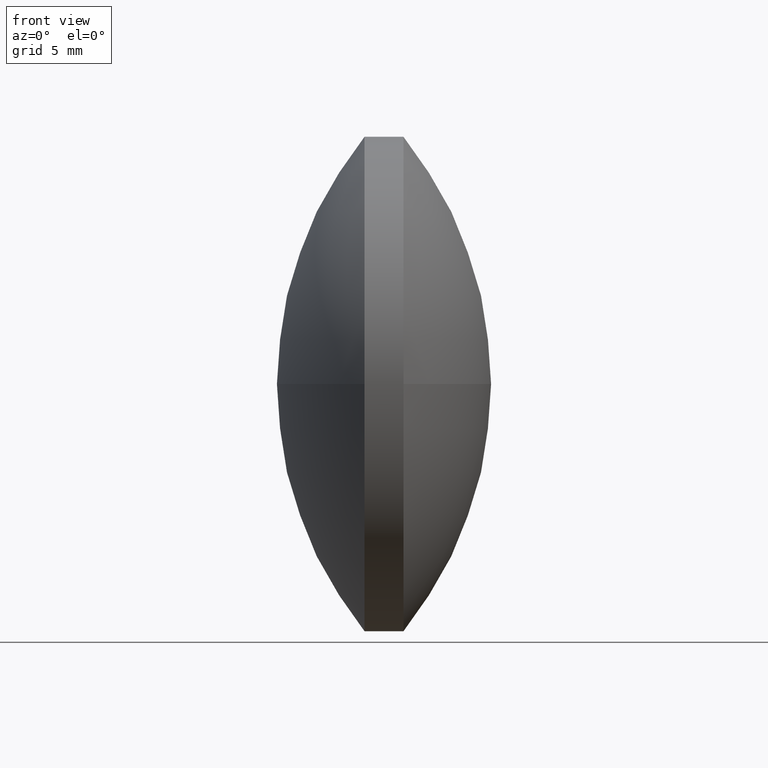
[diagram: clean part render]
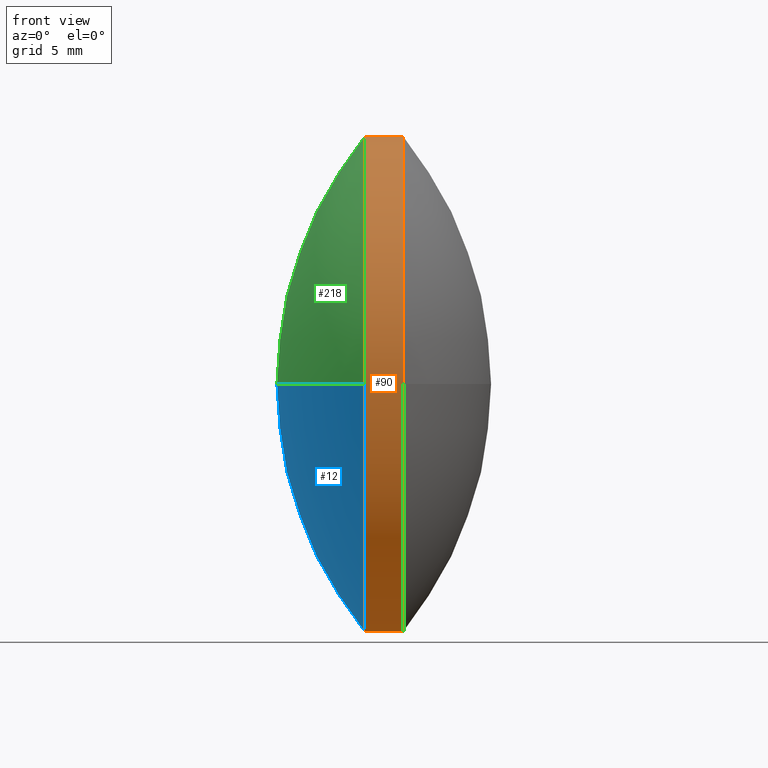
[diagram: same view with three faces highlighted in distinct colors, each labeled with its STEP entity id]
A machine part, front view with three faces highlighted in distinct colors.
Their STEP definitions:

[orange] entity #90 — the highlighted cylindrical surface (partial cylindrical patch) has radius 12.7 mm, axis along (-1, -0, -0).
#9 = CARTESIAN_POINT ( 'NONE',  ( 87.45786520323396500, 48.61611302318478100, 0.0000000000000000000 ) ) ;
#11 = DIRECTION ( 'NONE',  ( 0.0000000000000000000, 0.0000000000000000000, 1.000000000000000000 ) ) ;
#26 = DIRECTION ( 'NONE',  ( -1.000000000000000000, -0.0000000000000000000, -0.0000000000000000000 ) ) ;
#34 = VECTOR ( 'NONE', #333, 1000.000000000000000 ) ;
#39 = CIRCLE ( 'NONE', #170, 12.69999999999999600 ) ;
#40 = CARTESIAN_POINT ( 'NONE',  ( 85.45852234609111500, 48.61611302318478100, 0.0000000000000000000 ) ) ;
#47 = CIRCLE ( 'NONE', #201, 12.69999999999999600 ) ;
#52 = CARTESIAN_POINT ( 'NONE',  ( 85.45852234609111500, 48.61611302318478100, 0.0000000000000000000 ) ) ;
#64 = CARTESIAN_POINT ( 'NONE',  ( 79.30540135083715800, 48.61611302318478100, -12.69999999999999600 ) ) ;
#80 = EDGE_CURVE ( 'NONE', #232, #341, #178, .T. ) ;
#81 = CARTESIAN_POINT ( 'NONE',  ( 79.30540135083715800, 48.61611302318478100, 0.0000000000000000000 ) ) ;
#90 = ADVANCED_FACE ( 'NONE', ( #299 ), #243, .T. ) ;
#92 = VERTEX_POINT ( 'NONE', #180 ) ;
#113 = EDGE_CURVE ( 'NONE', #341, #202, #39, .T. ) ;
#114 = DIRECTION ( 'NONE',  ( 0.0000000000000000000, 0.0000000000000000000, 1.000000000000000000 ) ) ;
#122 = EDGE_CURVE ( 'NONE', #225, #312, #47, .T. ) ;
#133 = LINE ( 'NONE', #319, #34 ) ;
#134 = EDGE_CURVE ( 'NONE', #202, #92, #235, .T. ) ;
#136 = DIRECTION ( 'NONE',  ( 0.0000000000000000000, 0.0000000000000000000, 1.000000000000000000 ) ) ;
#139 = CARTESIAN_POINT ( 'NONE',  ( 87.45786520323396500, 35.91611302318477800, -1.555301434917138000E-015 ) ) ;
#145 = CARTESIAN_POINT ( 'NONE',  ( 87.45786520323396500, 48.61611302318478100, 0.0000000000000000000 ) ) ;
#156 = ORIENTED_EDGE ( 'NONE', *, *, #113, .F. ) ;
#158 = ORIENTED_EDGE ( 'NONE', *, *, #134, .F. ) ;
#159 = DIRECTION ( 'NONE',  ( -1.000000000000000000, -0.0000000000000000000, -0.0000000000000000000 ) ) ;
#163 = EDGE_LOOP ( 'NONE', ( #327, #173, #260, #245, #158, #156 ) ) ;
#167 = DIRECTION ( 'NONE',  ( 0.0000000000000000000, 0.0000000000000000000, 1.000000000000000000 ) ) ;
#170 = AXIS2_PLACEMENT_3D ( 'NONE', #52, #329, #167 ) ;
#173 = ORIENTED_EDGE ( 'NONE', *, *, #190, .T. ) ;
#178 = LINE ( 'NONE', #64, #345 ) ;
#180 = CARTESIAN_POINT ( 'NONE',  ( 85.45852234609111500, 48.61611302318478100, 12.69999999999999600 ) ) ;
#182 = AXIS2_PLACEMENT_3D ( 'NONE', #81, #26, #114 ) ;
#190 = EDGE_CURVE ( 'NONE', #232, #225, #191, .T. ) ;
#191 = CIRCLE ( 'NONE', #288, 12.69999999999999600 ) ;
#201 = AXIS2_PLACEMENT_3D ( 'NONE', #9, #264, #136 ) ;
#202 = VERTEX_POINT ( 'NONE', #301 ) ;
#210 = EDGE_CURVE ( 'NONE', #312, #92, #133, .T. ) ;
#215 = DIRECTION ( 'NONE',  ( 0.0000000000000000000, 0.0000000000000000000, 1.000000000000000000 ) ) ;
#217 = AXIS2_PLACEMENT_3D ( 'NONE', #40, #331, #215 ) ;
#225 = VERTEX_POINT ( 'NONE', #139 ) ;
#232 = VERTEX_POINT ( 'NONE', #295 ) ;
#235 = CIRCLE ( 'NONE', #217, 12.69999999999999600 ) ;
#243 = CYLINDRICAL_SURFACE ( 'NONE', #182, 12.69999999999999600 ) ;
#245 = ORIENTED_EDGE ( 'NONE', *, *, #210, .T. ) ;
#260 = ORIENTED_EDGE ( 'NONE', *, *, #122, .T. ) ;
#264 = DIRECTION ( 'NONE',  ( -1.000000000000000000, -0.0000000000000000000, -0.0000000000000000000 ) ) ;
#268 = CARTESIAN_POINT ( 'NONE',  ( 87.45786520323396500, 48.61611302318478100, 12.69999999999999600 ) ) ;
#276 = DIRECTION ( 'NONE',  ( -1.000000000000000000, -0.0000000000000000000, -0.0000000000000000000 ) ) ;
#288 = AXIS2_PLACEMENT_3D ( 'NONE', #145, #276, #11 ) ;
#295 = CARTESIAN_POINT ( 'NONE',  ( 87.45786520323396500, 48.61611302318478100, -12.69999999999999600 ) ) ;
#296 = CARTESIAN_POINT ( 'NONE',  ( 85.45852234609111500, 48.61611302318478100, -12.69999999999999600 ) ) ;
#299 = FACE_OUTER_BOUND ( 'NONE', #163, .T. ) ;
#301 = CARTESIAN_POINT ( 'NONE',  ( 85.45852234609111500, 35.91611302318478500, -1.555301434917137800E-015 ) ) ;
#312 = VERTEX_POINT ( 'NONE', #268 ) ;
#319 = CARTESIAN_POINT ( 'NONE',  ( 79.30540135083715800, 48.61611302318478100, 12.69999999999999600 ) ) ;
#327 = ORIENTED_EDGE ( 'NONE', *, *, #80, .F. ) ;
#329 = DIRECTION ( 'NONE',  ( -1.000000000000000000, -0.0000000000000000000, -0.0000000000000000000 ) ) ;
#331 = DIRECTION ( 'NONE',  ( -1.000000000000000000, -0.0000000000000000000, -0.0000000000000000000 ) ) ;
#333 = DIRECTION ( 'NONE',  ( -1.000000000000000000, -0.0000000000000000000, -0.0000000000000000000 ) ) ;
#341 = VERTEX_POINT ( 'NONE', #296 ) ;
#345 = VECTOR ( 'NONE', #159, 1000.000000000000000 ) ;

[blue] entity #12 — the highlighted spherical surface has radius 20.1701 mm.
#5 = ORIENTED_EDGE ( 'NONE', *, *, #150, .T. ) ;
#8 = CIRCLE ( 'NONE', #101, 12.69999999999999600 ) ;
#12 = ADVANCED_FACE ( 'NONE', ( #75 ), #118, .T. ) ;
#17 = CIRCLE ( 'NONE', #335, 20.17006843969368300 ) ;
#29 = VERTEX_POINT ( 'NONE', #261 ) ;
#39 = CIRCLE ( 'NONE', #170, 12.69999999999999600 ) ;
#41 = ORIENTED_EDGE ( 'NONE', *, *, #340, .T. ) ;
#52 = CARTESIAN_POINT ( 'NONE',  ( 85.45852234609111500, 48.61611302318478100, 0.0000000000000000000 ) ) ;
#54 = ORIENTED_EDGE ( 'NONE', *, *, #226, .F. ) ;
#57 = CARTESIAN_POINT ( 'NONE',  ( 101.1282913572133600, 48.61611302318477400, 0.0000000000000000000 ) ) ;
#65 = CIRCLE ( 'NONE', #234, 20.17006843969368300 ) ;
#75 = FACE_OUTER_BOUND ( 'NONE', #237, .T. ) ;
#78 = DIRECTION ( 'NONE',  ( 0.0000000000000000000, 1.000000000000000000, 0.0000000000000000000 ) ) ;
#93 = DIRECTION ( 'NONE',  ( -0.0000000000000000000, 0.0000000000000000000, 1.000000000000000000 ) ) ;
#95 = DIRECTION ( 'NONE',  ( 0.0000000000000000000, 1.224646799147353200E-016, -1.000000000000000000 ) ) ;
#101 = AXIS2_PLACEMENT_3D ( 'NONE', #188, #328, #209 ) ;
#113 = EDGE_CURVE ( 'NONE', #341, #202, #39, .T. ) ;
#118 = SPHERICAL_SURFACE ( 'NONE', #343, 20.17006843969367600 ) ;
#150 = EDGE_CURVE ( 'NONE', #202, #231, #17, .T. ) ;
#157 = DIRECTION ( 'NONE',  ( -0.0000000000000000000, 0.0000000000000000000, -1.000000000000000000 ) ) ;
#167 = DIRECTION ( 'NONE',  ( 0.0000000000000000000, 0.0000000000000000000, 1.000000000000000000 ) ) ;
#168 = DIRECTION ( 'NONE',  ( 0.0000000000000000000, 1.000000000000000000, 1.224646799147353000E-016 ) ) ;
#170 = AXIS2_PLACEMENT_3D ( 'NONE', #52, #329, #167 ) ;
#188 = CARTESIAN_POINT ( 'NONE',  ( 85.45852234609111500, 48.61611302318478100, 0.0000000000000000000 ) ) ;
#202 = VERTEX_POINT ( 'NONE', #301 ) ;
#209 = DIRECTION ( 'NONE',  ( 0.0000000000000000000, 0.0000000000000000000, 1.000000000000000000 ) ) ;
#226 = EDGE_CURVE ( 'NONE', #29, #231, #65, .T. ) ;
#230 = CARTESIAN_POINT ( 'NONE',  ( 101.1282913572133600, 48.61611302318477400, 0.0000000000000000000 ) ) ;
#231 = VERTEX_POINT ( 'NONE', #322 ) ;
#234 = AXIS2_PLACEMENT_3D ( 'NONE', #57, #93, #238 ) ;
#237 = EDGE_LOOP ( 'NONE', ( #41, #281, #5, #54 ) ) ;
#238 = DIRECTION ( 'NONE',  ( 1.000000000000000000, 0.0000000000000000000, 0.0000000000000000000 ) ) ;
#248 = CARTESIAN_POINT ( 'NONE',  ( 101.1282913572133600, 48.61611302318477400, 0.0000000000000000000 ) ) ;
#261 = CARTESIAN_POINT ( 'NONE',  ( 85.45852234609111500, 61.31611302318477600, 0.0000000000000000000 ) ) ;
#281 = ORIENTED_EDGE ( 'NONE', *, *, #113, .T. ) ;
#296 = CARTESIAN_POINT ( 'NONE',  ( 85.45852234609111500, 48.61611302318478100, -12.69999999999999600 ) ) ;
#301 = CARTESIAN_POINT ( 'NONE',  ( 85.45852234609111500, 35.91611302318478500, -1.555301434917137800E-015 ) ) ;
#322 = CARTESIAN_POINT ( 'NONE',  ( 80.95822291751966300, 48.61611302318477400, 0.0000000000000000000 ) ) ;
#328 = DIRECTION ( 'NONE',  ( -1.000000000000000000, -0.0000000000000000000, -0.0000000000000000000 ) ) ;
#329 = DIRECTION ( 'NONE',  ( -1.000000000000000000, -0.0000000000000000000, -0.0000000000000000000 ) ) ;
#335 = AXIS2_PLACEMENT_3D ( 'NONE', #248, #95, #168 ) ;
#340 = EDGE_CURVE ( 'NONE', #29, #341, #8, .T. ) ;
#341 = VERTEX_POINT ( 'NONE', #296 ) ;
#343 = AXIS2_PLACEMENT_3D ( 'NONE', #230, #157, #78 ) ;

[green] entity #218 — the highlighted spherical surface has radius 20.1701 mm.
#2 = AXIS2_PLACEMENT_3D ( 'NONE', #143, #4, #184 ) ;
#4 = DIRECTION ( 'NONE',  ( -0.0000000000000000000, 0.0000000000000000000, -1.000000000000000000 ) ) ;
#17 = CIRCLE ( 'NONE', #335, 20.17006843969368300 ) ;
#29 = VERTEX_POINT ( 'NONE', #261 ) ;
#40 = CARTESIAN_POINT ( 'NONE',  ( 85.45852234609111500, 48.61611302318478100, 0.0000000000000000000 ) ) ;
#42 = AXIS2_PLACEMENT_3D ( 'NONE', #85, #266, #269 ) ;
#50 = EDGE_LOOP ( 'NONE', ( #77, #203, #103, #310 ) ) ;
#57 = CARTESIAN_POINT ( 'NONE',  ( 101.1282913572133600, 48.61611302318477400, 0.0000000000000000000 ) ) ;
#65 = CIRCLE ( 'NONE', #234, 20.17006843969368300 ) ;
#77 = ORIENTED_EDGE ( 'NONE', *, *, #150, .F. ) ;
#79 = CIRCLE ( 'NONE', #42, 12.69999999999999600 ) ;
#85 = CARTESIAN_POINT ( 'NONE',  ( 85.45852234609111500, 48.61611302318478100, 0.0000000000000000000 ) ) ;
#92 = VERTEX_POINT ( 'NONE', #180 ) ;
#93 = DIRECTION ( 'NONE',  ( -0.0000000000000000000, 0.0000000000000000000, 1.000000000000000000 ) ) ;
#95 = DIRECTION ( 'NONE',  ( 0.0000000000000000000, 1.224646799147353200E-016, -1.000000000000000000 ) ) ;
#103 = ORIENTED_EDGE ( 'NONE', *, *, #258, .T. ) ;
#134 = EDGE_CURVE ( 'NONE', #202, #92, #235, .T. ) ;
#135 = SPHERICAL_SURFACE ( 'NONE', #2, 20.17006843969367600 ) ;
#143 = CARTESIAN_POINT ( 'NONE',  ( 101.1282913572133600, 48.61611302318477400, 0.0000000000000000000 ) ) ;
#150 = EDGE_CURVE ( 'NONE', #202, #231, #17, .T. ) ;
#168 = DIRECTION ( 'NONE',  ( 0.0000000000000000000, 1.000000000000000000, 1.224646799147353000E-016 ) ) ;
#180 = CARTESIAN_POINT ( 'NONE',  ( 85.45852234609111500, 48.61611302318478100, 12.69999999999999600 ) ) ;
#184 = DIRECTION ( 'NONE',  ( 0.0000000000000000000, 1.000000000000000000, 0.0000000000000000000 ) ) ;
#202 = VERTEX_POINT ( 'NONE', #301 ) ;
#203 = ORIENTED_EDGE ( 'NONE', *, *, #134, .T. ) ;
#215 = DIRECTION ( 'NONE',  ( 0.0000000000000000000, 0.0000000000000000000, 1.000000000000000000 ) ) ;
#217 = AXIS2_PLACEMENT_3D ( 'NONE', #40, #331, #215 ) ;
#218 = ADVANCED_FACE ( 'NONE', ( #338 ), #135, .T. ) ;
#226 = EDGE_CURVE ( 'NONE', #29, #231, #65, .T. ) ;
#231 = VERTEX_POINT ( 'NONE', #322 ) ;
#234 = AXIS2_PLACEMENT_3D ( 'NONE', #57, #93, #238 ) ;
#235 = CIRCLE ( 'NONE', #217, 12.69999999999999600 ) ;
#238 = DIRECTION ( 'NONE',  ( 1.000000000000000000, 0.0000000000000000000, 0.0000000000000000000 ) ) ;
#248 = CARTESIAN_POINT ( 'NONE',  ( 101.1282913572133600, 48.61611302318477400, 0.0000000000000000000 ) ) ;
#258 = EDGE_CURVE ( 'NONE', #92, #29, #79, .T. ) ;
#261 = CARTESIAN_POINT ( 'NONE',  ( 85.45852234609111500, 61.31611302318477600, 0.0000000000000000000 ) ) ;
#266 = DIRECTION ( 'NONE',  ( -1.000000000000000000, -0.0000000000000000000, -0.0000000000000000000 ) ) ;
#269 = DIRECTION ( 'NONE',  ( 0.0000000000000000000, 0.0000000000000000000, 1.000000000000000000 ) ) ;
#301 = CARTESIAN_POINT ( 'NONE',  ( 85.45852234609111500, 35.91611302318478500, -1.555301434917137800E-015 ) ) ;
#310 = ORIENTED_EDGE ( 'NONE', *, *, #226, .T. ) ;
#322 = CARTESIAN_POINT ( 'NONE',  ( 80.95822291751966300, 48.61611302318477400, 0.0000000000000000000 ) ) ;
#331 = DIRECTION ( 'NONE',  ( -1.000000000000000000, -0.0000000000000000000, -0.0000000000000000000 ) ) ;
#335 = AXIS2_PLACEMENT_3D ( 'NONE', #248, #95, #168 ) ;
#338 = FACE_OUTER_BOUND ( 'NONE', #50, .T. ) ;